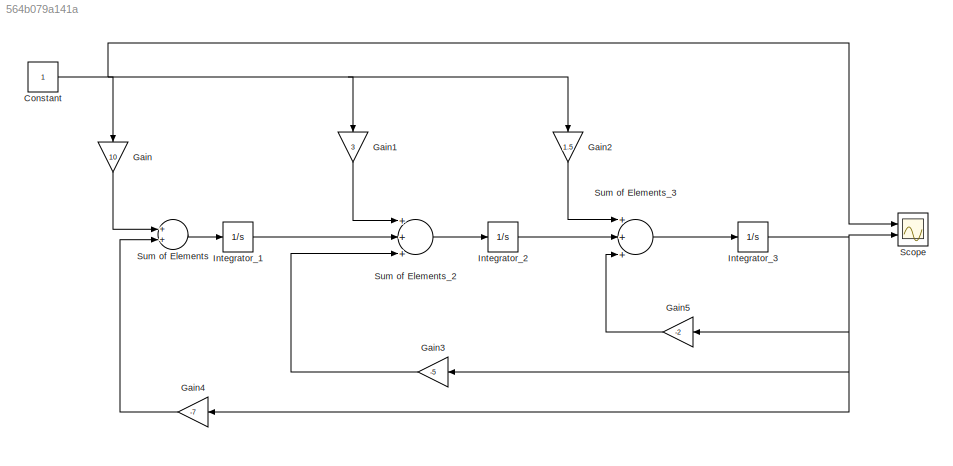
MODEL slx_564b079a141a
KIND model
CONFIG AbsTol = auto
CONFIG EnableMultiTasking = off
CONFIG FixedStep = auto
CONFIG MaxStep = 0.01
CONFIG MinStep = auto
CONFIG RelTol = 1e-3
CONFIG SampleTimeConstraint = Unconstrained
CONFIG Solver = VariableStepAuto
CONFIG SolverName = VariableStepAuto
CONFIG StartTime = 0.0
CONFIG StopTime = 35
BLOCK [Constant] Constant
BLOCK [Gain] Gain
  Gain = 10
  OutDataTypeStr = Inherit: Inherit via internal rule
  ParamDataTypeStr = Inherit: Inherit via internal rule
  SaturateOnIntegerOverflow = off
BLOCK [Gain] Gain1
  Gain = 3
  OutDataTypeStr = Inherit: Inherit via internal rule
  ParamDataTypeStr = Inherit: Inherit via internal rule
  SaturateOnIntegerOverflow = off
BLOCK [Gain] Gain2
  Gain = 1.5
  OutDataTypeStr = Inherit: Inherit via internal rule
  ParamDataTypeStr = Inherit: Inherit via internal rule
  SaturateOnIntegerOverflow = off
BLOCK [Gain] Gain3
  Gain = -5
  OutDataTypeStr = Inherit: Inherit via internal rule
  ParamDataTypeStr = Inherit: Inherit via internal rule
  SaturateOnIntegerOverflow = off
BLOCK [Gain] Gain4
  Gain = -7
  OutDataTypeStr = Inherit: Inherit via internal rule
  ParamDataTypeStr = Inherit: Inherit via internal rule
  SaturateOnIntegerOverflow = off
BLOCK [Gain] Gain5
  Gain = -2
  OutDataTypeStr = Inherit: Inherit via internal rule
  ParamDataTypeStr = Inherit: Inherit via internal rule
  SaturateOnIntegerOverflow = off
BLOCK [Integrator] Integrator_1
  Ports = [1, 1]
BLOCK [Integrator] Integrator_2
  Ports = [1, 1]
BLOCK [Integrator] Integrator_3
  Ports = [1, 1]
BLOCK [Scope] Scope
  NumInputPorts = 2
  Ports = [2]
  ScopeSpecificationString = Simulink.scopes.TimeScopeBlockCfg('CurrentConfiguration', extmgr.ConfigurationSet(extmgr.Configuration('Core','General UI',true,'FigureColor',[1 1 1]),extmgr.Configuration('Core','Source UI',true),extmgr.Configuration('Sources','WiredSimulink',true,'DataLogging',true,'DataLoggingSaveFormat','StructureWithTime','DataLoggingVariableName','result'),extmgr.Configuration('Visuals','Time Domain',true,'S...<+1727ch>
BLOCK [Sum] Sum of Elements
  InputSameDT = off
  OutDataTypeStr = Inherit: Inherit via internal rule
  Ports = [2, 1]
  SaturateOnIntegerOverflow = off
BLOCK [Sum] Sum of Elements_2
  InputSameDT = off
  Inputs = +++
  OutDataTypeStr = Inherit: Inherit via internal rule
  Ports = [3, 1]
  SaturateOnIntegerOverflow = off
BLOCK [Sum] Sum of Elements_3
  InputSameDT = off
  Inputs = +++
  OutDataTypeStr = Inherit: Inherit via internal rule
  Ports = [3, 1]
  SaturateOnIntegerOverflow = off
NET Constant:1 -> Gain1:1, Gain2:1, Gain:1, Scope:1
LINE Gain1:1 -> Sum of Elements_2:1
LINE Gain2:1 -> Sum of Elements_3:1
LINE Gain3:1 -> Sum of Elements_2:3
LINE Gain4:1 -> Sum of Elements:2
LINE Gain5:1 -> Sum of Elements_3:3
LINE Gain:1 -> Sum of Elements:1
LINE Integrator_1:1 -> Sum of Elements_2:2
LINE Integrator_2:1 -> Sum of Elements_3:2
NET Integrator_3:1 -> Gain3:1, Gain4:1, Gain5:1, Scope:2
LINE Sum of Elements:1 -> Integrator_1:1
LINE Sum of Elements_2:1 -> Integrator_2:1
LINE Sum of Elements_3:1 -> Integrator_3:1
note: NET lines group one-source signal fan-out (src -> all destinations, sorted); 1:1 wires keep LINE
